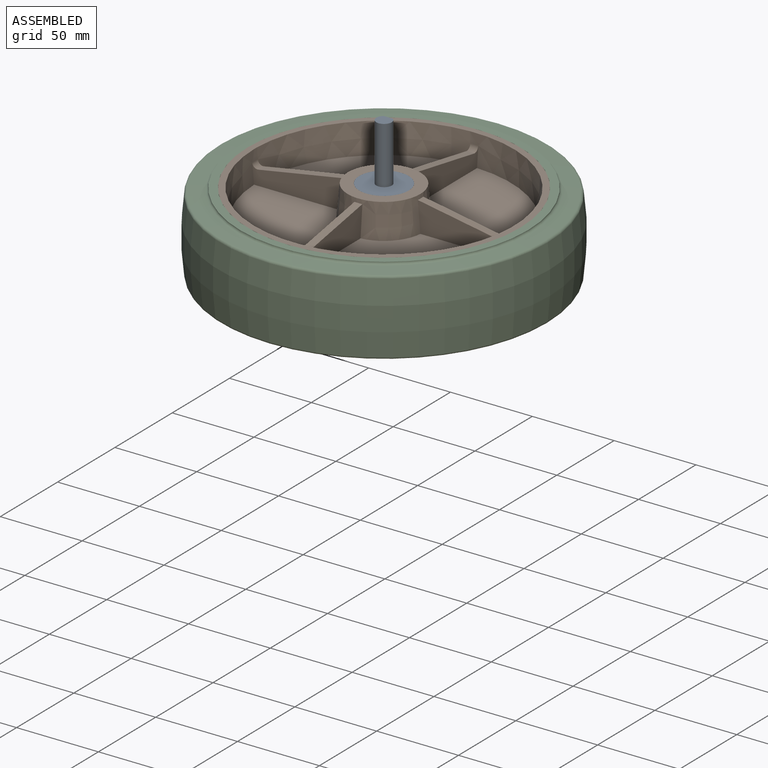
[diagram: assembled view]
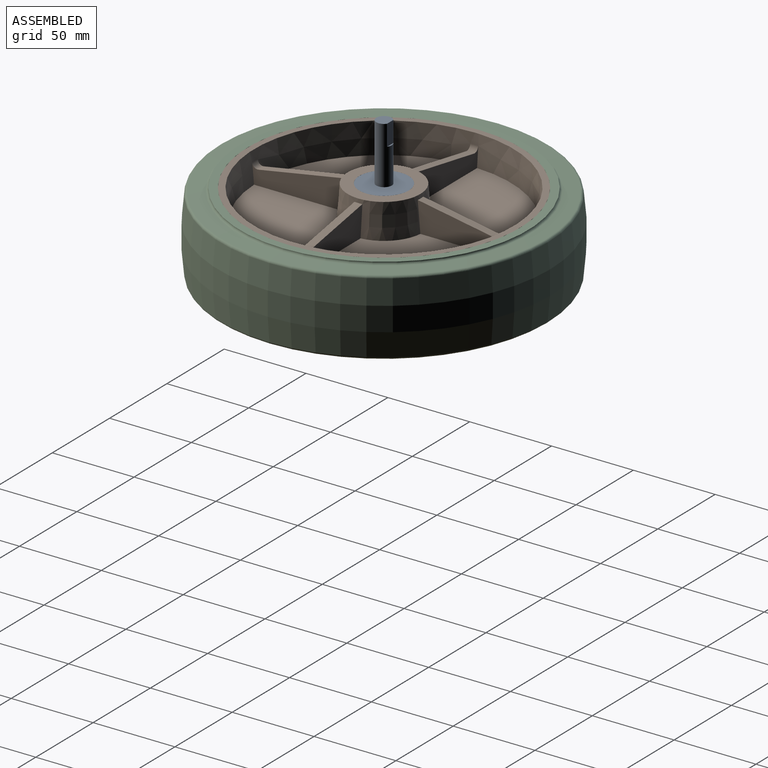
[diagram: assembled view, second angle]
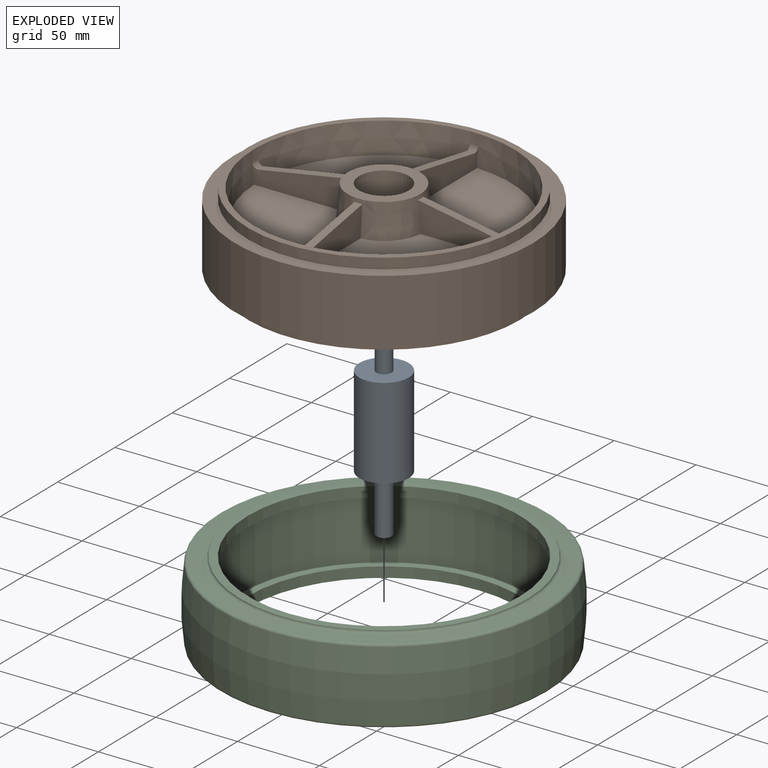
[diagram: exploded view]
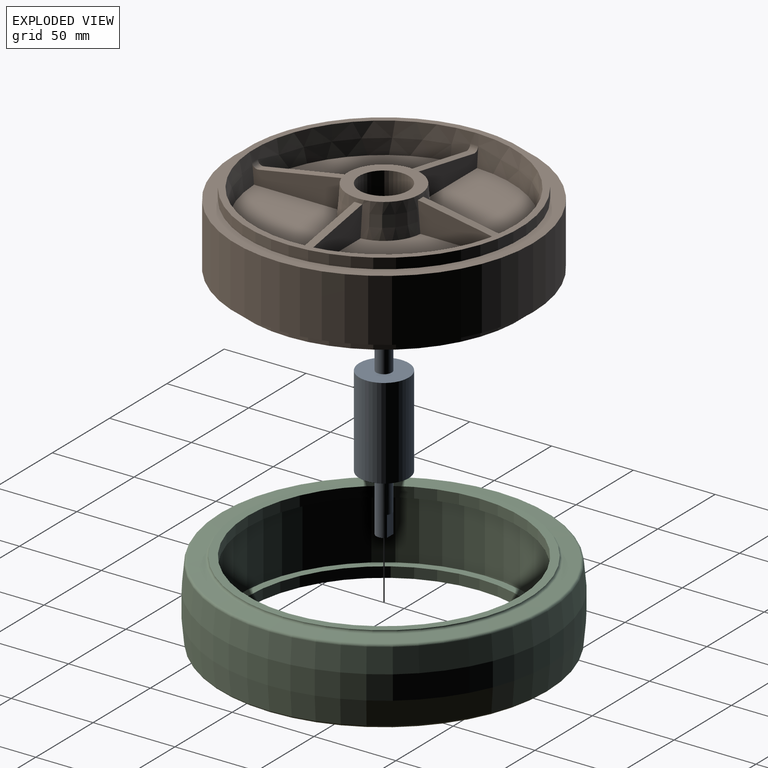
[diagram: exploded view, second angle]
ASSEMBLY  parts=3 mates=2
PART A: 11 faces, bbox 30.2x125.4x30.2 mm
  f0: cylinder r=15.09mm len=55.58mm, axis (0,1,0), area 5268.4mm2, adj f1,f2
  f1: plane 30.18x30.18mm, normal (0,-1,0), area 645mm2, adj f0,f3
  f2: plane 30.18x30.18mm, normal (0,1,0), area 645mm2, adj f0,f5
  f3: cylinder r=4.72mm len=34.93mm, axis (0,1,0), area 960.8mm2, adj f1,f4,f9,f10
  f4: plane 9.45x8.53mm, normal (0,-1,0), area 66.6mm2, adj f3,f9
  f5: cylinder r=4.72mm len=34.93mm, axis (0,-1,0), area 960.8mm2, adj f2,f6,f7,f8
  f6: plane 9.45x8.53mm, normal (0,1,0), area 66.6mm2, adj f5,f7
  f7: plane 12.7x5.59mm, normal (0,0,1), area 71mm2, adj f5,f6,f8
  f8: plane 5.59x0.91mm, normal (0,1,0), area 3.5mm2, adj f5,f7
  f9: plane 12.7x5.59mm, normal (0,0,1), area 71mm2, adj f3,f4,f10
  f10: plane 5.59x0.91mm, normal (0,-1,0), area 3.5mm2, adj f3,f9
PART B: 68 faces, bbox 182.3x182.3x55.6 mm
  f0: plane 39.22x39.22mm, normal (-0.71,-0.71,0), area 730mm2, adj f1,f4,f6,f7,f66,f67
  f1: cylinder r=77.79mm len=9.64mm, axis (0,0,-1), area 46.5mm2, adj f0,f2,f7,f67
  f2: plane 39.21x39.21mm, normal (0.71,0.71,0), area 730mm2, adj f1,f3,f4,f7,f66,f67
  f3: plane 106.53x59.16mm, normal (0,0,-1), area 4037.7mm2, adj f2,f4,f7,f24
  f4: cone r=24.03mm half-angle=5deg, axis (0,0,1), area 1328.4mm2, adj f0,f2,f3,f5,f6,f13,f24,f25
  f5: cone r=24.03mm half-angle=5deg, axis (0,0,1), area 1.6mm2, adj f4,f6,f17
  f6: plane 106.53x59.16mm, normal (0,0,-1), area 4037.7mm2, adj f0,f4,f5,f7,f8,f17
  f7: cone r=79.38mm half-angle=5deg, axis (0,0,-1), area 4530.3mm2, adj f0,f1,f2,f3,f6,f8,f21,f22
  f8: cone r=79.38mm half-angle=5deg, axis (0,0,-1), area 4530.3mm2, adj f6,f7,f9,f10,f11,f12,f15,f16
  f9: plane 39.22x39.22mm, normal (0.71,0.71,0), area 730mm2, adj f8,f10,f13,f19,f20,f21
  f10: cylinder r=77.79mm len=9.64mm, axis (0,0,-1), area 46.5mm2, adj f8,f9,f11,f20
  f11: plane 39.21x39.21mm, normal (-0.71,-0.71,0), area 730mm2, adj f8,f10,f12,f13,f19,f20
  f12: plane 106.53x59.16mm, normal (0,0,-1), area 4037.7mm2, adj f8,f11,f13,f15
  f13: cone r=24.03mm half-angle=5deg, axis (0,0,1), area 1328.4mm2, adj f4,f9,f11,f12,f14,f15,f19,f21
  f14: cone r=22.43mm half-angle=80deg, axis (0,0,1), area 258.2mm2, adj f13,f15,f17,f18
  f15: plane 39.22x39.22mm, normal (0.71,-0.71,0), area 730mm2, adj f8,f12,f13,f14,f16,f18
  f16: cylinder r=77.79mm len=9.64mm, axis (0,0,-1), area 46.5mm2, adj f8,f15,f17,f18
  f17: plane 39.21x39.21mm, normal (-0.71,0.71,0), area 730mm2, adj f5,f6,f8,f14,f16,f18
  f18: torus R=75.65mm, axis (0,0,-1), area 14mm2, adj f14,f15,f16,f17
  f19: cone r=22.43mm half-angle=80deg, axis (0,0,1), area 258.2mm2, adj f9,f11,f13,f20
  f20: torus R=75.65mm, axis (0,0,-1), area 14mm2, adj f9,f10,f11,f19
  f21: plane 106.53x59.16mm, normal (0,0,-1), area 4037.7mm2, adj f7,f8,f9,f13,f22,f27
  f22: plane 39.21x39.21mm, normal (0.71,-0.71,0), area 730mm2, adj f7,f21,f23,f25,f26,f27
  f23: cylinder r=77.79mm len=9.64mm, axis (0,0,-1), area 46.5mm2, adj f7,f22,f24,f26
  f24: plane 39.22x39.22mm, normal (-0.71,0.71,0), area 730mm2, adj f3,f4,f7,f23,f25,f26
  f25: cone r=22.43mm half-angle=80deg, axis (0,0,1), area 258.2mm2, adj f4,f22,f24,f26
  f26: torus R=75.65mm, axis (0,0,-1), area 14mm2, adj f22,f23,f24,f25
  f27: cone r=24.03mm half-angle=5deg, axis (0,0,1), area 1.6mm2, adj f13,f21,f22
  f28: plane 44.45x44.45mm, normal (0,0,-1), area 834.2mm2, adj f4,f13,f29,f30
  f29: cylinder r=15.11mm len=55.56mm, axis (0,0,1), area 2638mm2, adj f28,f30,f31
  f30: cylinder r=15.11mm len=55.56mm, axis (0,0,1), area 2638mm2, adj f28,f29,f31
  f31: plane 44.45x44.45mm, normal (0,0,1), area 834.2mm2, adj f29,f30,f32,f33
  f32: cone r=22.23mm half-angle=5deg, axis (0,0,-1), area 1330mm2, adj f31,f33,f34,f37,f38,f39,f40,f41
  f33: cone r=22.23mm half-angle=5deg, axis (0,0,-1), area 1330mm2, adj f31,f32,f34,f44,f47,f48,f49,f50
  f34: cone r=75.1mm half-angle=80deg, axis (0,0,-1), area 258.2mm2, adj f32,f33,f35,f37,f54
  f35: torus R=75.65mm, axis (0,0,-1), area 25.6mm2, adj f34,f36,f37,f54
  f36: cone r=77.78mm half-angle=5deg, axis (0,0,1), area 4416.8mm2, adj f35,f37,f38,f39,f41,f42,f43,f46
  f37: plane 56.52x18.33mm, normal (0,-1,0), area 734.6mm2, adj f32,f34,f35,f36,f38
  f38: plane 75.32x75.32mm, normal (0,0,1), area 4037.7mm2, adj f32,f36,f37,f39
  f39: plane 56.52x18.33mm, normal (-1,0,0), area 734.6mm2, adj f32,f36,f38,f40,f65
  f40: cone r=75.1mm half-angle=80deg, axis (0,0,-1), area 258.2mm2, adj f32,f39,f41,f65
  f41: plane 56.52x18.33mm, normal (1,0,0), area 734.6mm2, adj f32,f36,f40,f42,f65
  f42: plane 75.32x75.32mm, normal (0,0,1), area 4037.7mm2, adj f32,f36,f41,f43
  f43: plane 56.51x18.33mm, normal (0,-1,0), area 734.6mm2, adj f32,f36,f42,f44,f45
  f44: cone r=75.1mm half-angle=80deg, axis (0,0,-1), area 258.2mm2, adj f32,f33,f43,f45,f47
  f45: torus R=75.65mm, axis (0,0,-1), area 25.6mm2, adj f43,f44,f46,f47
  f46: cone r=77.78mm half-angle=5deg, axis (0,0,1), area 4416.8mm2, adj f36,f45,f47,f48,f49,f51,f52,f53
  f47: plane 56.51x18.33mm, normal (0,1,0), area 734.6mm2, adj f33,f44,f45,f46,f48
  f48: plane 75.32x75.32mm, normal (0,0,1), area 4037.7mm2, adj f33,f46,f47,f49
  f49: plane 56.51x18.33mm, normal (1,0,0), area 734.6mm2, adj f33,f46,f48,f50,f51
  f50: cone r=75.1mm half-angle=80deg, axis (0,0,-1), area 258.2mm2, adj f33,f49,f51,f52
  f51: torus R=75.65mm, axis (0,0,-1), area 25.6mm2, adj f46,f49,f50,f52
  f52: plane 56.51x18.33mm, normal (-1,0,0), area 734.6mm2, adj f33,f46,f50,f51,f53
  f53: plane 75.32x75.32mm, normal (0,0,1), area 4037.7mm2, adj f33,f46,f52,f54
  f54: plane 56.52x18.33mm, normal (0,1,0), area 734.6mm2, adj f33,f34,f35,f46,f53
  f55: plane 166.37x166.37mm, normal (0,0,1), area 1945.8mm2, adj f36,f46,f56,f57
  f56: cylinder r=83.18mm len=166.37mm, axis (0,0,1), area 1659.5mm2, adj f55,f57,f58
  f57: cylinder r=83.18mm len=166.37mm, axis (0,0,1), area 1659.5mm2, adj f55,f56,f58
  f58: plane 182.25x182.25mm, normal (0,0,1), area 4346.6mm2, adj f56,f57,f59,f60
  f59: cylinder r=91.12mm len=182.25mm, axis (0,0,1), area 10906.9mm2, adj f58,f60,f61
  f60: cylinder r=91.12mm len=182.25mm, axis (0,0,1), area 10906.9mm2, adj f58,f59,f61
  f61: plane 182.25x182.25mm, normal (0,0,-1), area 4346.6mm2, adj f59,f60,f62,f63
  f62: cylinder r=83.18mm len=166.37mm, axis (0,0,1), area 1659.5mm2, adj f61,f63,f64
  f63: cylinder r=83.18mm len=166.37mm, axis (0,0,1), area 1659.5mm2, adj f61,f62,f64
  f64: plane 166.37x166.37mm, normal (0,0,-1), area 1945.8mm2, adj f7,f8,f62,f63
  f65: torus R=75.65mm, axis (0,0,-1), area 25.6mm2, adj f36,f39,f40,f41
  f66: cone r=22.43mm half-angle=80deg, axis (0,0,1), area 258.2mm2, adj f0,f2,f4,f67
  f67: torus R=75.65mm, axis (0,0,-1), area 14mm2, adj f0,f1,f2,f66
PART C: 24 faces, bbox 216.6x216.6x53 mm
  f0: plane 176.02x176.02mm, normal (0,0,1), area 2595.6mm2, adj f1,f2,f22,f23
  f1: torus R=89.53mm, axis (0,0,-1), area 666.1mm2, adj f0,f2,f4
  f2: torus R=89.53mm, axis (0,0,-1), area 666.1mm2, adj f0,f1,f3
  f3: cone r=98.66mm half-angle=85deg, axis (0,0,-1), area 2708mm2, adj f2,f4,f6
  f4: cone r=98.66mm half-angle=85deg, axis (0,0,-1), area 2708mm2, adj f1,f3,f5
  f5: torus R=98.53mm, axis (0,0,-1), area 638.4mm2, adj f4,f6,f8
  f6: torus R=98.53mm, axis (0,0,-1), area 638.4mm2, adj f3,f5,f7
  f7: revolved ~203.2x101.6mm, area 13878.1mm2, adj f6,f8,f10
  f8: revolved ~203.2x101.6mm, area 13878.1mm2, adj f5,f7,f9
  f9: torus R=98.53mm, axis (0,0,-1), area 638.4mm2, adj f8,f10,f12
  f10: torus R=98.53mm, axis (0,0,-1), area 638.4mm2, adj f7,f9,f11
  f11: cone r=89.53mm half-angle=85deg, axis (0,0,1), area 2708mm2, adj f10,f12,f14
  f12: cone r=89.53mm half-angle=85deg, axis (0,0,1), area 2708mm2, adj f9,f11,f13
  f13: torus R=89.53mm, axis (0,0,-1), area 666.1mm2, adj f12,f14,f15
  f14: torus R=89.53mm, axis (0,0,-1), area 666.1mm2, adj f11,f13,f15
  f15: plane 176.02x176.02mm, normal (0,0,-1), area 2595.6mm2, adj f13,f14,f16,f17
  f16: cylinder r=83.18mm len=166.37mm, axis (0,0,1), area 1659.5mm2, adj f15,f17,f18
  f17: cylinder r=83.18mm len=166.37mm, axis (0,0,1), area 1659.5mm2, adj f15,f16,f18
  f18: plane 176.02x176.02mm, normal (0,0,1), area 2595.6mm2, adj f16,f17,f19,f20
  f19: cylinder r=88.01mm len=176.02mm, axis (0,0,1), area 10534.4mm2, adj f18,f20,f21
  f20: cylinder r=88.01mm len=176.02mm, axis (0,0,1), area 10534.4mm2, adj f18,f19,f21
  f21: plane 176.02x176.02mm, normal (0,0,-1), area 2595.6mm2, adj f19,f20,f22,f23
  f22: cylinder r=83.18mm len=166.37mm, axis (0,0,1), area 1659.5mm2, adj f0,f21,f23
  f23: cylinder r=83.18mm len=166.37mm, axis (0,0,1), area 1659.5mm2, adj f0,f21,f22
PLACE A rot(axis=(-1,0,0),90deg) t=(-47.61,-25.58,-24.93)mm
PLACE B t=(-47.61,-25.58,2.86)mm
PLACE C t=(-47.61,-25.58,2.86)mm
MATE fastened A.f0 <-> B.f4  axis (0,0,1) through (-47.61,-25.58,30.64)mm
MATE fastened C.f1 <-> B.f4  axis (0,0,1) through (-47.61,-25.58,28.26)mm
